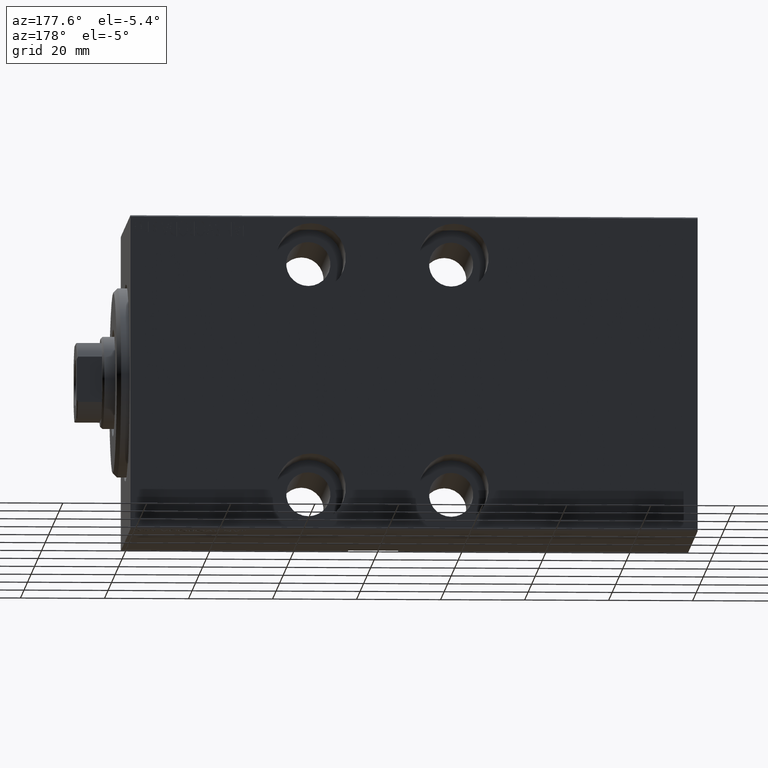
[diagram: clean part render]
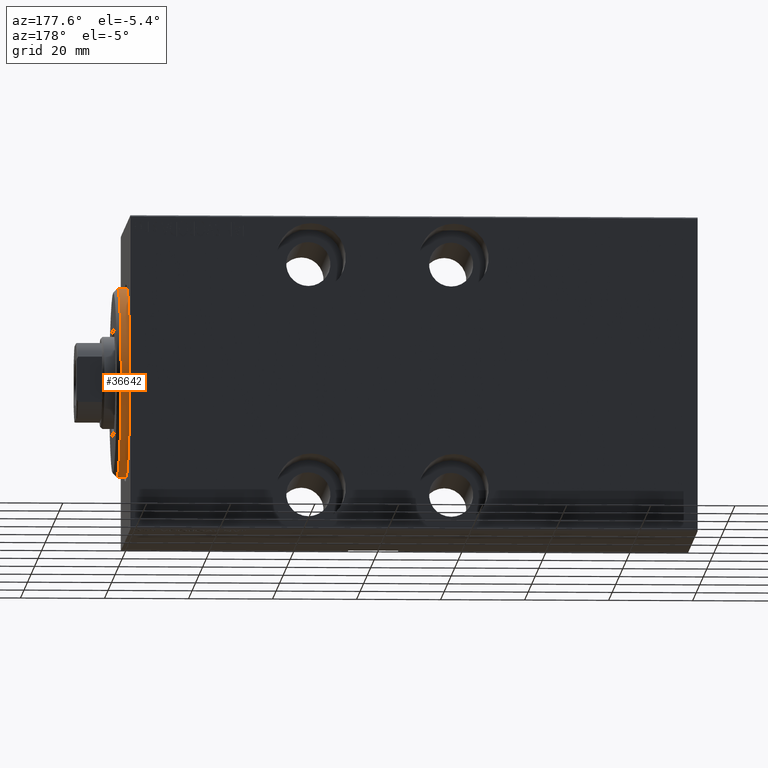
[diagram: same view with one face highlighted and labeled with its STEP entity id]
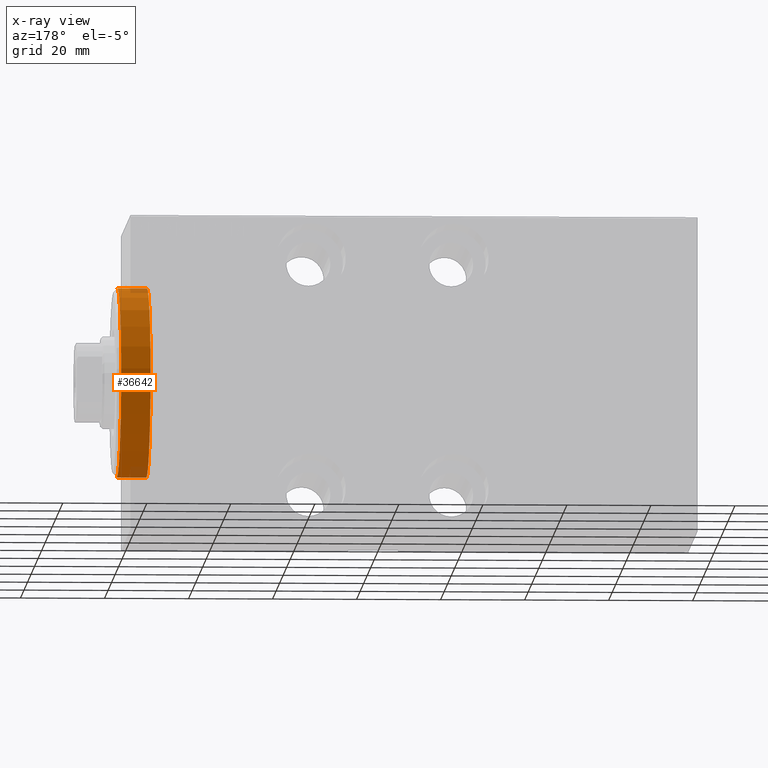
[diagram: x-ray of the same camera — body ghosted, the highlighted face saturated]
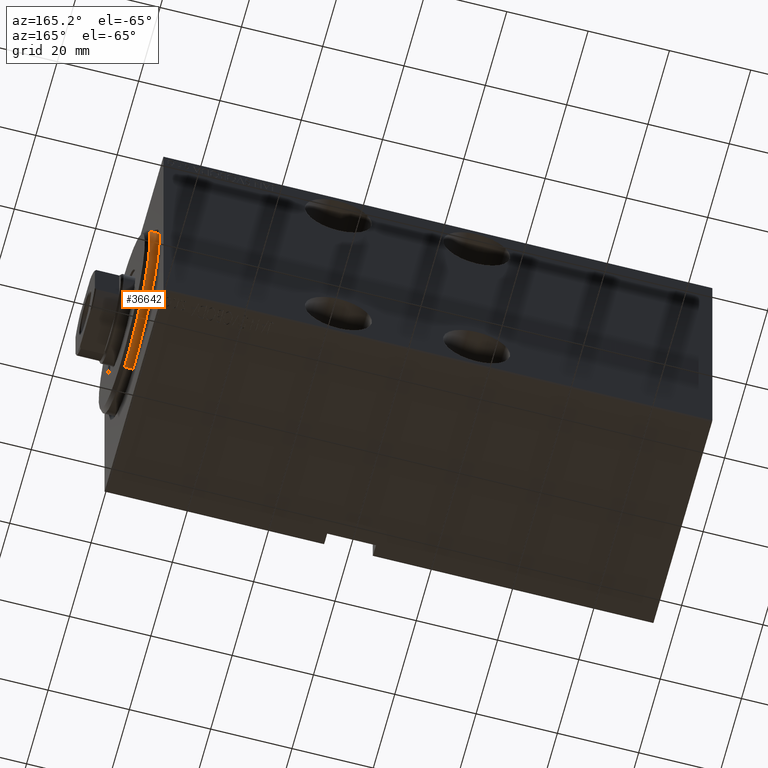
[diagram: same view with one face highlighted and labeled with its STEP entity id]
A machine part, auxiliary view. The second image highlights one B-rep face of the part: STEP entity #36642.
The next image is the same camera in x-ray: the body ghosted, the highlighted face saturated — about 5% of this face is hidden behind the body in this view.
A second angle (auxiliary view) of the same face is appended — the face is thin or edge-on in the first view.
In plain terms, the highlighted cylindrical surface (partial cylindrical patch) has radius 22.5 mm, axis along (-1, 0, 0).
Its self-contained STEP definition (entity closure, byte-faithful):
#560 = CARTESIAN_POINT ( 'NONE',  ( -5.000000000000000000, 0.000000000000000000, 0.000000000000000000 ) ) ;
#729 = ORIENTED_EDGE ( 'NONE', *, *, #36078, .F. ) ;
#1047 = LINE ( 'NONE', #30941, #2832 ) ;
#1440 = AXIS2_PLACEMENT_3D ( 'NONE', #560, #3680, #14069 ) ;
#1547 = CYLINDRICAL_SURFACE ( 'NONE', #28293, 22.50000000000000355 ) ;
#2268 = AXIS2_PLACEMENT_3D ( 'NONE', #2603, #11907, #12787 ) ;
#2396 = VERTEX_POINT ( 'NONE', #28996 ) ;
#2603 = CARTESIAN_POINT ( 'NONE',  ( 1.999999999999999112, 0.000000000000000000, 0.000000000000000000 ) ) ;
#2825 = EDGE_CURVE ( 'NONE', #32740, #13368, #22082, .T. ) ;
#2832 = VECTOR ( 'NONE', #24944, 1000.000000000000000 ) ;
#3680 = DIRECTION ( 'NONE',  ( -1.000000000000000000, 0.000000000000000000, 0.000000000000000000 ) ) ;
#4044 = VERTEX_POINT ( 'NONE', #30487 ) ;
#4873 = CARTESIAN_POINT ( 'NONE',  ( 3.000000000000000000, 0.000000000000000000, 0.000000000000000000 ) ) ;
#11354 = EDGE_LOOP ( 'NONE', ( #17139, #33008, #729, #42966 ) ) ;
#11907 = DIRECTION ( 'NONE',  ( -1.000000000000000000, 0.000000000000000000, 0.000000000000000000 ) ) ;
#12787 = DIRECTION ( 'NONE',  ( 0.000000000000000000, 0.000000000000000000, -1.000000000000000000 ) ) ;
#13368 = VERTEX_POINT ( 'NONE', #31998 ) ;
#14069 = DIRECTION ( 'NONE',  ( 0.000000000000000000, 0.000000000000000000, 1.000000000000000000 ) ) ;
#15344 = DIRECTION ( 'NONE',  ( -1.000000000000000000, -0.000000000000000000, -0.000000000000000000 ) ) ;
#15496 = DIRECTION ( 'NONE',  ( -1.000000000000000000, -0.000000000000000000, -0.000000000000000000 ) ) ;
#17139 = ORIENTED_EDGE ( 'NONE', *, *, #2825, .T. ) ;
#18663 = LINE ( 'NONE', #35253, #18952 ) ;
#18952 = VECTOR ( 'NONE', #15344, 1000.000000000000000 ) ;
#22082 = CIRCLE ( 'NONE', #2268, 22.50000000000000355 ) ;
#24944 = DIRECTION ( 'NONE',  ( -1.000000000000000000, -0.000000000000000000, -0.000000000000000000 ) ) ;
#25723 = EDGE_CURVE ( 'NONE', #32740, #4044, #18663, .T. ) ;
#28293 = AXIS2_PLACEMENT_3D ( 'NONE', #4873, #15496, #34972 ) ;
#28996 = CARTESIAN_POINT ( 'NONE',  ( -5.000000000000000000, 2.755455298081545172E-15, -22.50000000000000355 ) ) ;
#30487 = CARTESIAN_POINT ( 'NONE',  ( -5.000000000000000000, 0.000000000000000000, 22.50000000000000355 ) ) ;
#30941 = CARTESIAN_POINT ( 'NONE',  ( 3.000000000000000000, 2.755455298081545172E-15, -22.50000000000000355 ) ) ;
#31998 = CARTESIAN_POINT ( 'NONE',  ( 1.999999999999999112, 2.755455298081545172E-15, -22.50000000000000355 ) ) ;
#32740 = VERTEX_POINT ( 'NONE', #38330 ) ;
#33008 = ORIENTED_EDGE ( 'NONE', *, *, #35693, .T. ) ;
#34972 = DIRECTION ( 'NONE',  ( 0.000000000000000000, 0.000000000000000000, 1.000000000000000000 ) ) ;
#35253 = CARTESIAN_POINT ( 'NONE',  ( 3.000000000000000000, 0.000000000000000000, 22.50000000000000355 ) ) ;
#35693 = EDGE_CURVE ( 'NONE', #13368, #2396, #1047, .T. ) ;
#36078 = EDGE_CURVE ( 'NONE', #4044, #2396, #38911, .T. ) ;
#36642 = ADVANCED_FACE ( 'NONE', ( #38298 ), #1547, .T. ) ;
#38298 = FACE_OUTER_BOUND ( 'NONE', #11354, .T. ) ;
#38330 = CARTESIAN_POINT ( 'NONE',  ( 1.999999999999999112, 0.000000000000000000, 22.50000000000000355 ) ) ;
#38911 = CIRCLE ( 'NONE', #1440, 22.50000000000000355 ) ;
#42966 = ORIENTED_EDGE ( 'NONE', *, *, #25723, .F. ) ;